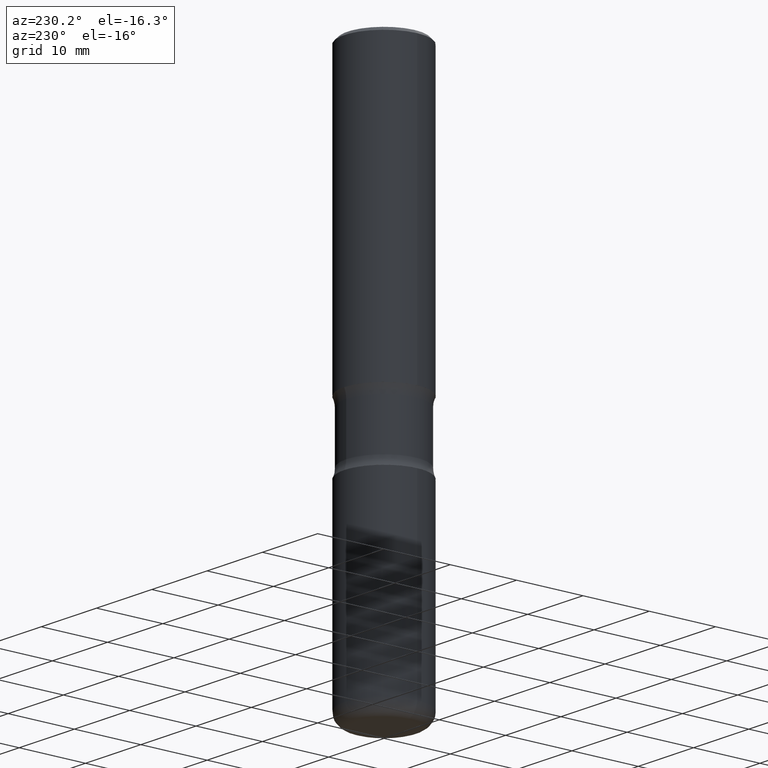
[diagram: clean part render]
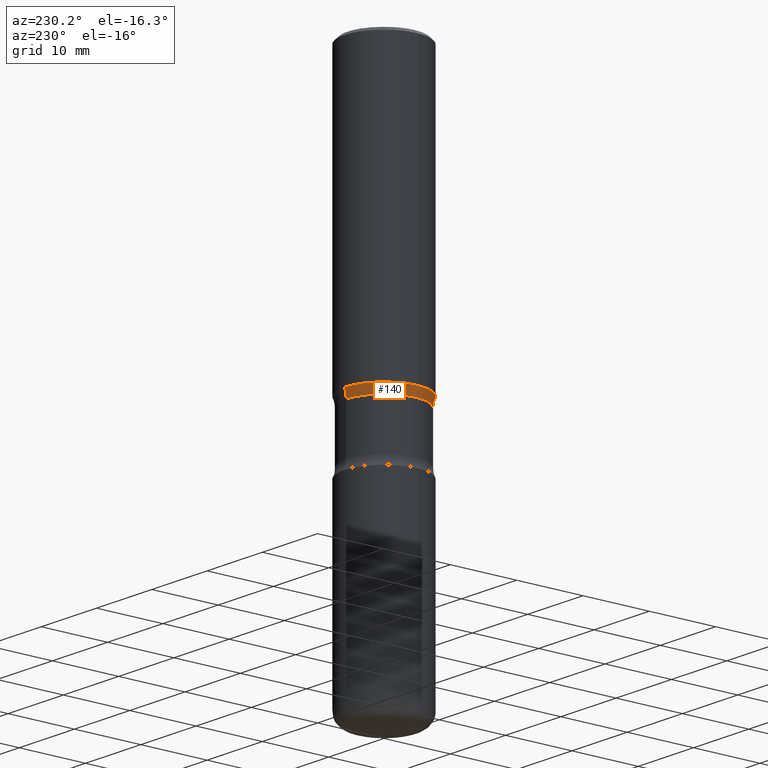
[diagram: same view with one face highlighted and labeled with its STEP entity id]
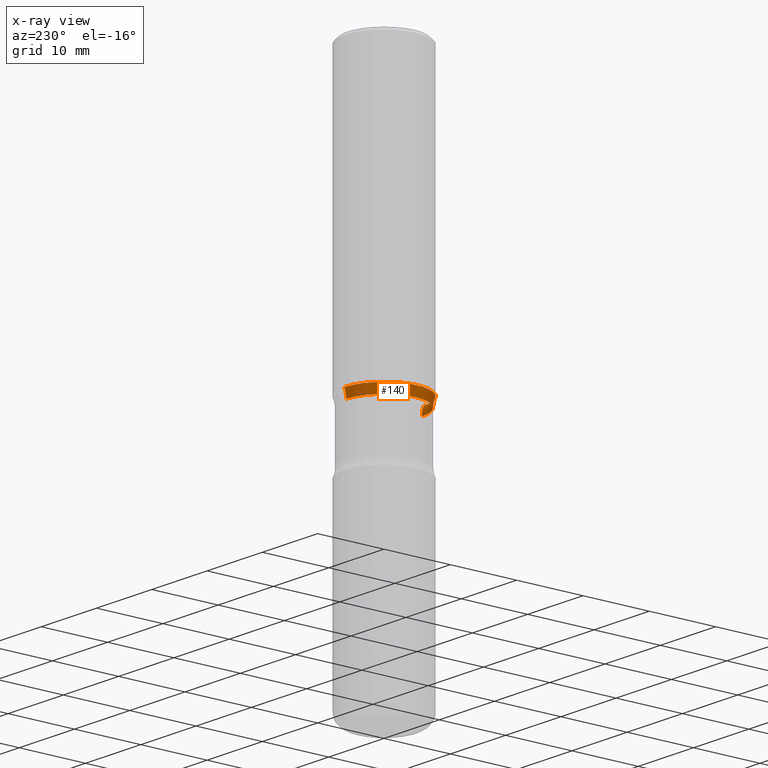
[diagram: x-ray of the same camera — body ghosted, the highlighted face saturated]
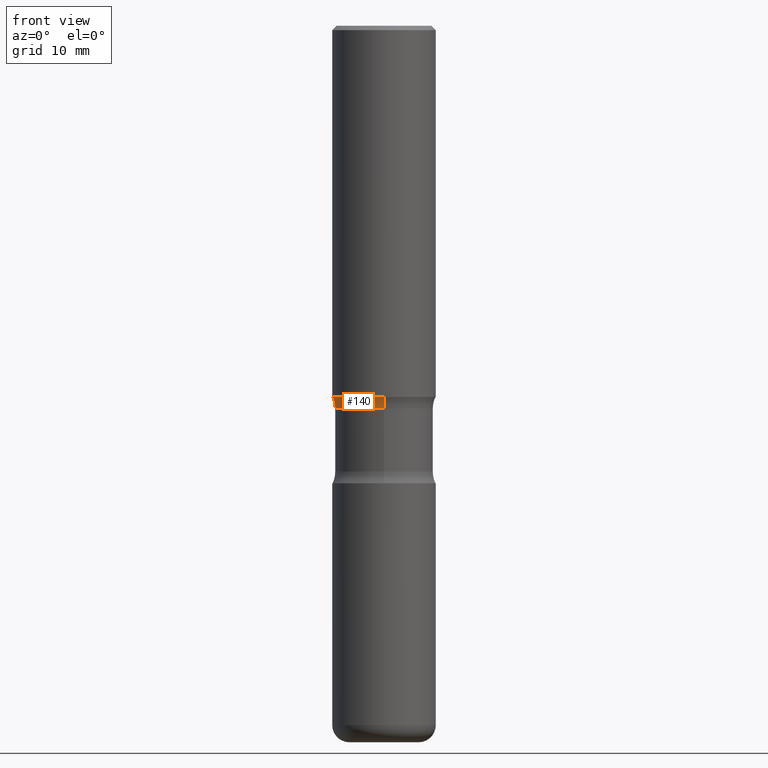
[diagram: same view with one face highlighted and labeled with its STEP entity id]
A machine part, auxiliary view. The second image highlights one B-rep face of the part: STEP entity #140.
The next image is the same camera in x-ray: the body ghosted, the highlighted face saturated — about 0% of this face is hidden behind the body in this view.
A second angle (front view) of the same face is appended — the face is thin or edge-on in the first view.
In plain terms, the highlighted toroidal blend (fillet) surface has major radius 8.8646 mm and minor (blend) radius 3.175 mm.
Its self-contained STEP definition (entity closure, byte-faithful):
#2 = AXIS2_PLACEMENT_3D ( 'NONE', #455, #66, #150 ) ;
#14 = VERTEX_POINT ( 'NONE', #336 ) ;
#26 = CIRCLE ( 'NONE', #396, 0.1250000000000000000 ) ;
#47 = CARTESIAN_POINT ( 'NONE',  ( 4.319343984834906171E-29, -6.030492183638177096E-15, -1.746762417324141614 ) ) ;
#66 = DIRECTION ( 'NONE',  ( -1.000000000000000000, 6.982962677686265922E-15, -4.883557194083112340E-29 ) ) ;
#68 = CARTESIAN_POINT ( 'NONE',  ( 1.649375784469538335E-15, 0.2361999999999943312, -1.692900000000000293 ) ) ;
#92 = DIRECTION ( 'NONE',  ( 2.394995749868806294E-29, -3.563761628236091094E-15, -1.000000000000000000 ) ) ;
#98 = EDGE_CURVE ( 'NONE', #356, #330, #147, .T. ) ;
#99 = DIRECTION ( 'NONE',  ( 2.394995749868806294E-29, -3.563761628236091094E-15, -1.000000000000000000 ) ) ;
#137 = CARTESIAN_POINT ( 'NONE',  ( 4.159805384262556359E-29, -5.882272008593556915E-15, -1.692899999999999627 ) ) ;
#140 = ADVANCED_FACE ( 'NONE', ( #174 ), #212, .F. ) ;
#143 = DIRECTION ( 'NONE',  ( 6.982962677686265133E-15, 1.000000000000000000, -3.563761628236091094E-15 ) ) ;
#147 = CIRCLE ( 'NONE', #2, 0.1250000000000000000 ) ;
#150 = DIRECTION ( 'NONE',  ( -6.982962677686266711E-15, -1.000000000000000000, 0.000000000000000000 ) ) ;
#162 = CARTESIAN_POINT ( 'NONE',  ( -1.578600589287187205E-15, -0.2240000000000060554, -1.746762417324140948 ) ) ;
#174 = FACE_OUTER_BOUND ( 'NONE', #459, .T. ) ;
#198 = ORIENTED_EDGE ( 'NONE', *, *, #98, .F. ) ;
#212 = TOROIDAL_SURFACE ( 'NONE', #465, 0.3489999999999999769, 0.1250000000000000000 ) ;
#223 = DIRECTION ( 'NONE',  ( 1.000000000000000000, -6.860497997771530774E-15, 4.839913701373677961E-29 ) ) ;
#237 = DIRECTION ( 'NONE',  ( 6.982962677686265922E-15, 1.000000000000000000, -3.658724991514637697E-15 ) ) ;
#245 = EDGE_CURVE ( 'NONE', #14, #330, #422, .T. ) ;
#265 = CARTESIAN_POINT ( 'NONE',  ( -2.394313801222220614E-15, -0.3490000000000059721, -1.746762417324140282 ) ) ;
#279 = ORIENTED_EDGE ( 'NONE', *, *, #245, .T. ) ;
#293 = ORIENTED_EDGE ( 'NONE', *, *, #398, .F. ) ;
#330 = VERTEX_POINT ( 'NONE', #68 ) ;
#336 = CARTESIAN_POINT ( 'NONE',  ( -1.620449627073595044E-15, -0.2362000000000060163, -1.692899999999998739 ) ) ;
#356 = VERTEX_POINT ( 'NONE', #520 ) ;
#362 = DIRECTION ( 'NONE',  ( 2.394995749868806294E-29, -3.563761628236091094E-15, -1.000000000000000000 ) ) ;
#396 = AXIS2_PLACEMENT_3D ( 'NONE', #265, #223, #507 ) ;
#398 = EDGE_CURVE ( 'NONE', #402, #356, #413, .T. ) ;
#402 = VERTEX_POINT ( 'NONE', #162 ) ;
#413 = CIRCLE ( 'NONE', #466, 0.2240000000000000324 ) ;
#422 = CIRCLE ( 'NONE', #540, 0.2362000000000001598 ) ;
#439 = CARTESIAN_POINT ( 'NONE',  ( 4.288805644831536135E-29, -6.074224824657373494E-15, -1.746762417324141614 ) ) ;
#455 = CARTESIAN_POINT ( 'NONE',  ( 2.437053974512549538E-15, 0.3489999999999939262, -1.746762417324142946 ) ) ;
#459 = EDGE_LOOP ( 'NONE', ( #293, #491, #279, #198 ) ) ;
#465 = AXIS2_PLACEMENT_3D ( 'NONE', #47, #99, #143 ) ;
#466 = AXIS2_PLACEMENT_3D ( 'NONE', #439, #362, #237 ) ;
#478 = DIRECTION ( 'NONE',  ( 6.982962677686265922E-15, 1.000000000000000000, -3.469747663417774636E-15 ) ) ;
#491 = ORIENTED_EDGE ( 'NONE', *, *, #551, .T. ) ;
#507 = DIRECTION ( 'NONE',  ( 6.860497997771529985E-15, 1.000000000000000000, 0.000000000000000000 ) ) ;
#520 = CARTESIAN_POINT ( 'NONE',  ( 1.564183639801766791E-15, 0.2239999999999939539, -1.746762417324142502 ) ) ;
#540 = AXIS2_PLACEMENT_3D ( 'NONE', #137, #92, #478 ) ;
#551 = EDGE_CURVE ( 'NONE', #402, #14, #26, .T. ) ;